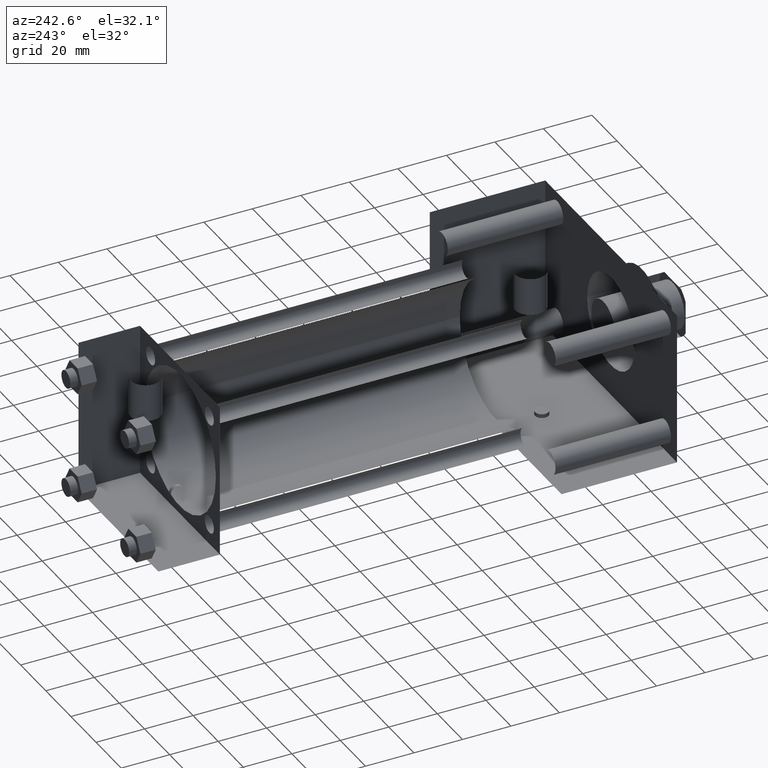
[diagram: clean part render]
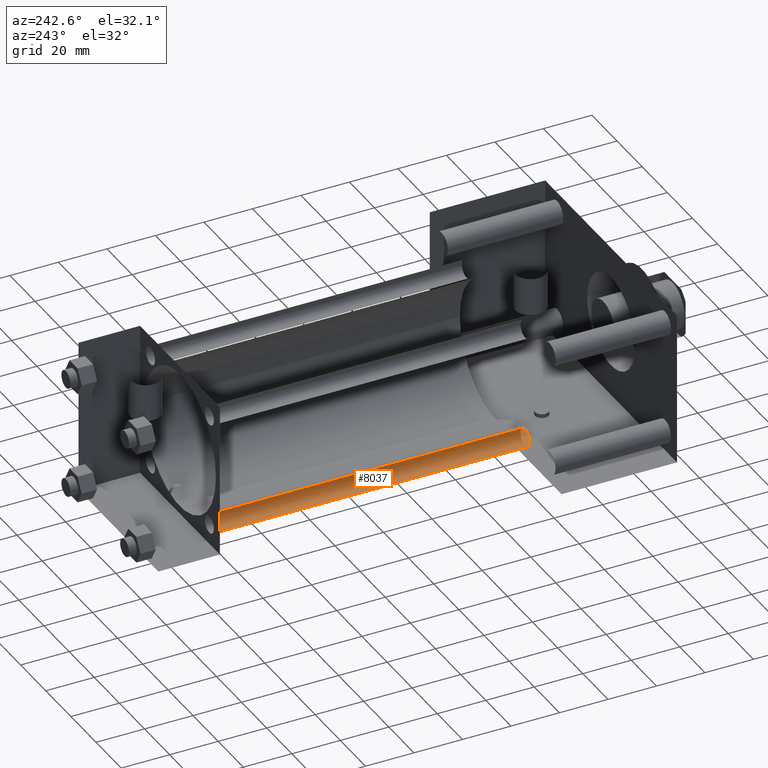
[diagram: same view with one face highlighted and labeled with its STEP entity id]
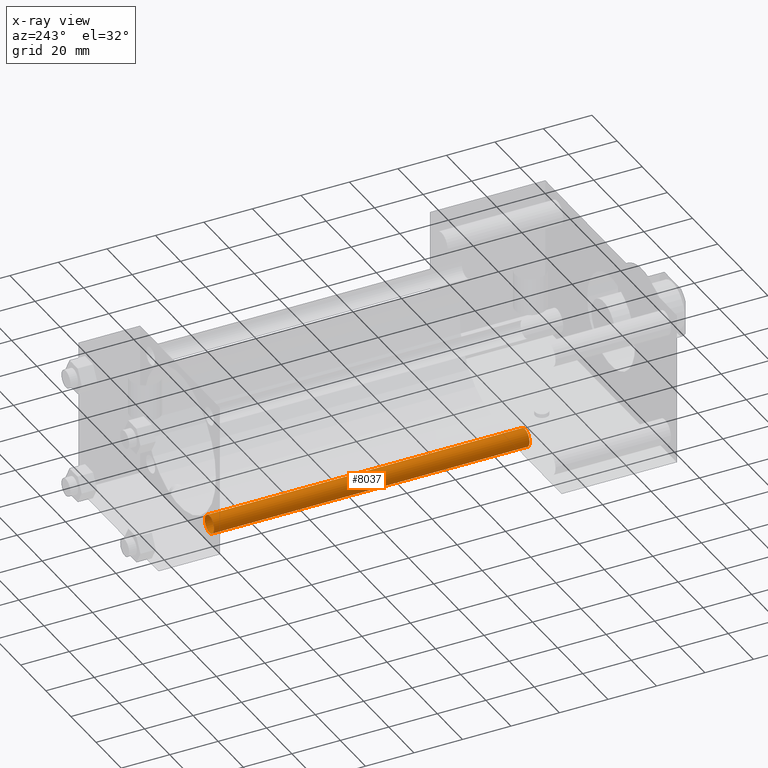
[diagram: x-ray of the same camera — body ghosted, the highlighted face saturated]
A machine part, auxiliary view. The second image highlights one B-rep face of the part: STEP entity #8037.
The next image is the same camera in x-ray: the body ghosted, the highlighted face saturated — about 0% of this face is hidden behind the body in this view.
In plain terms, the highlighted cylindrical surface (bore or boss wall) has radius 3.5687 mm, axis along (0, -1, 0).
Its self-contained STEP definition (entity closure, byte-faithful):
#889=EDGE_CURVE('',#895,#895,#890,.T.);
#890=CIRCLE('',#891,3.568700000E+000);
#891=AXIS2_PLACEMENT_3D('',#892,#893,#894);
#892=CARTESIAN_POINT('',(-2.336800000E+001,7.302500000E+001,-2.336800000E+001));
#893=DIRECTION('',(0.0E+000,1.0E+000,0.0E+000));
#894=DIRECTION('',(1.0E+000,0.0E+000,0.0E+000));
#895=VERTEX_POINT('',#896);
#896=CARTESIAN_POINT('',(-1.979930000E+001,7.302500000E+001,-2.336800000E+001));
#1075=FACE_OUTER_BOUND('',#1077,.T.);
#1076=FACE_BOUND('',#1078,.T.);
#1077=EDGE_LOOP('',(#1079));
#1078=EDGE_LOOP('',(#1080));
#1079=ORIENTED_EDGE('',*,*,#1124,.F.);
#1080=ORIENTED_EDGE('',*,*,#889,.T.);
#1081=CYLINDRICAL_SURFACE('',#1082,3.568700000E+000);
#1082=AXIS2_PLACEMENT_3D('',#1083,#1084,#1085);
#1083=CARTESIAN_POINT('',(-2.336800000E+001,2.032000000E+002,-2.336800000E+001));
#1084=DIRECTION('',(0.0E+000,-1.0E+000,0.0E+000));
#1085=DIRECTION('',(0.0E+000,0.0E+000,-1.0E+000));
#1124=EDGE_CURVE('',#1130,#1130,#1125,.T.);
#1125=CIRCLE('',#1126,3.568700000E+000);
#1126=AXIS2_PLACEMENT_3D('',#1127,#1128,#1129);
#1127=CARTESIAN_POINT('',(-2.336800000E+001,2.032000000E+002,-2.336800000E+001));
#1128=DIRECTION('',(0.0E+000,1.0E+000,0.0E+000));
#1129=DIRECTION('',(1.0E+000,0.0E+000,0.0E+000));
#1130=VERTEX_POINT('',#1131);
#1131=CARTESIAN_POINT('',(-1.979930000E+001,2.032000000E+002,-2.336800000E+001));
#8037=ADVANCED_FACE('',(#1075,#1076),#1081,.T.);